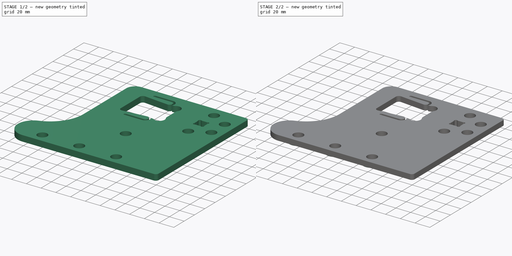
[diagram: build sequence overview — one tinted view per stage of 2, left to right]
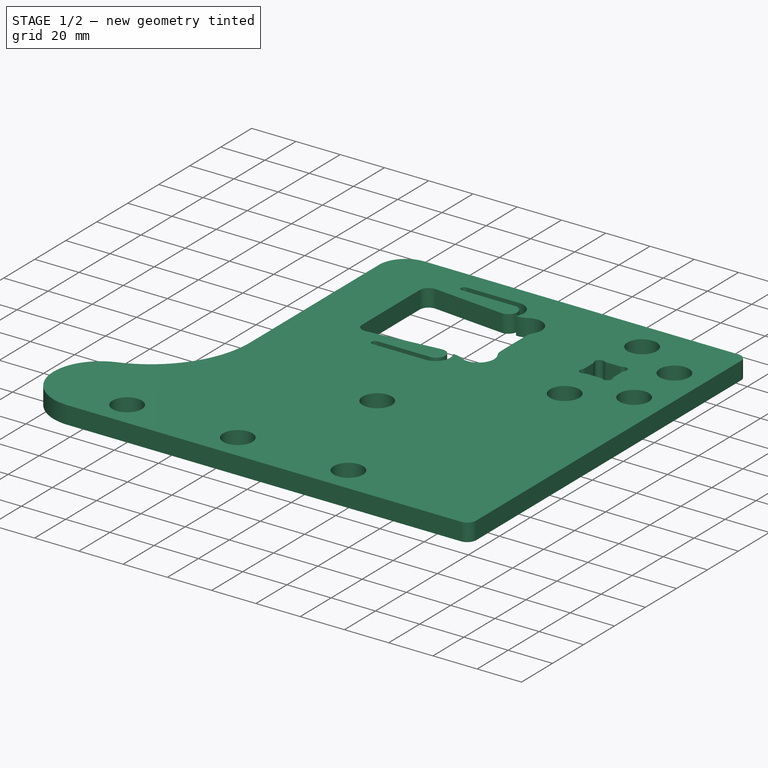
[diagram: stage 1 of 2 — iso view after this stage's code; geometry added in this stage tinted green]
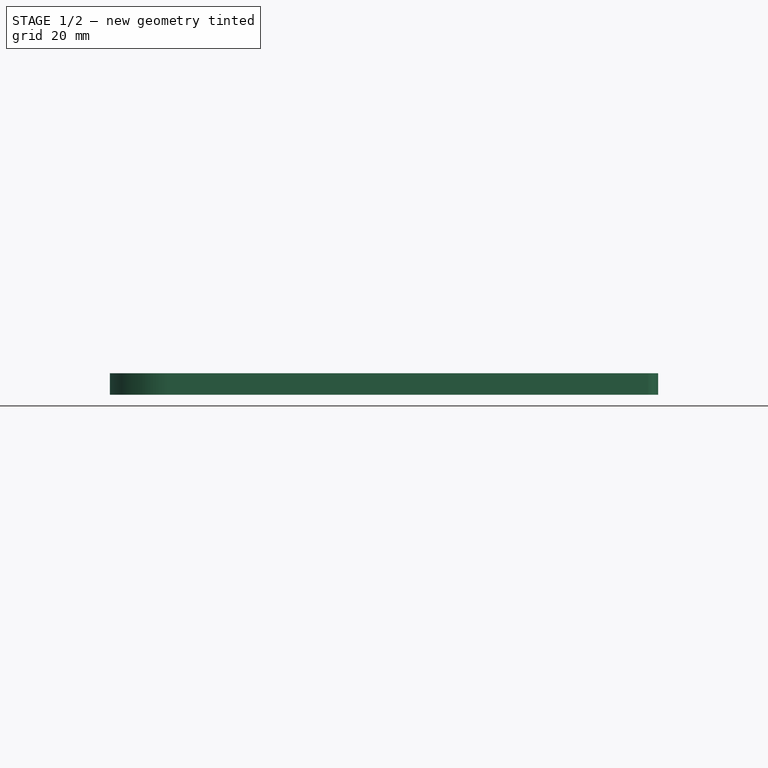
[diagram: stage 1 of 2 — front view after this stage's code; geometry added in this stage tinted green]
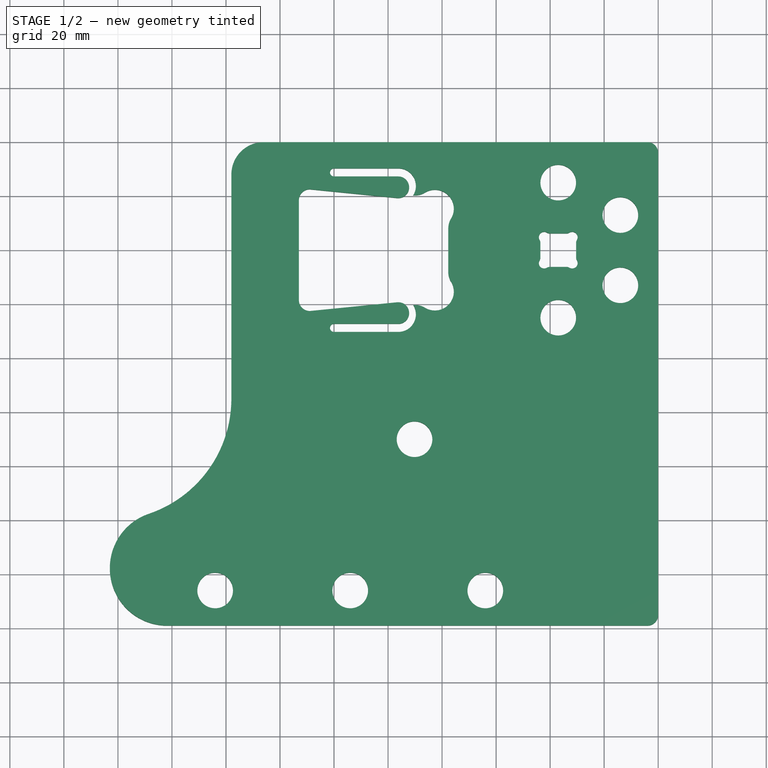
[diagram: stage 1 of 2 — top view after this stage's code; geometry added in this stage tinted green]
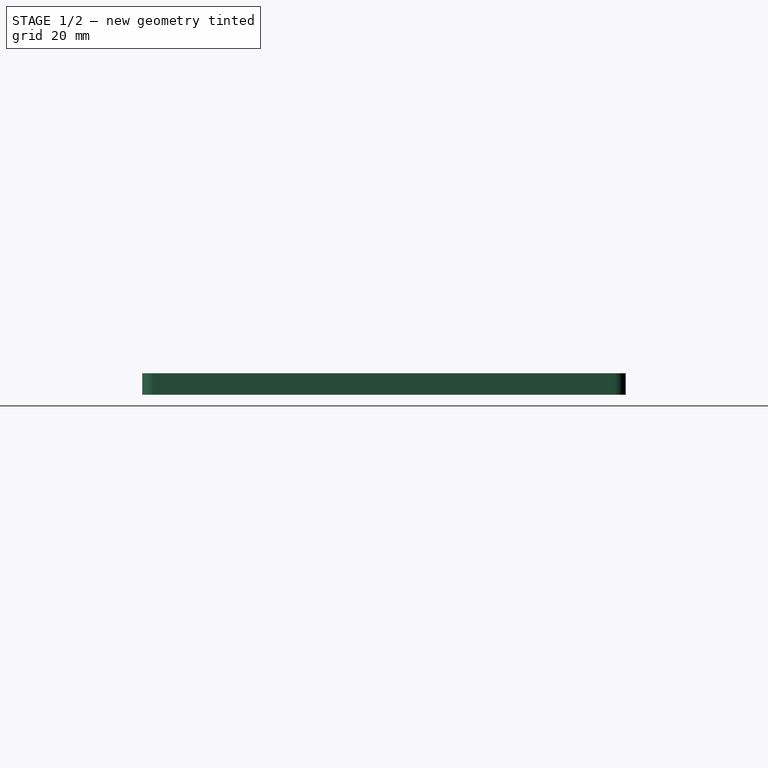
[diagram: stage 1 of 2 — right view after this stage's code; geometry added in this stage tinted green]
FCSTD DOCUMENT  (FreeCAD 0.19R24267 +99 (Git))
Label: V2 Tabbed end plate opposing plate + FEA cutouts right side
License: All rights reserved
LicenseURL: http://en.wikipedia.org/wiki/All_rights_reserved
objects: Sketcher::SketchObject×2, PartDesign::Pad×1, PartDesign::Pocket×1, PartDesign::Body×1
note: 7 computed .brp shape members not serialized (recipe doc carries the construction recipe); baked Part::Feature solids carry a one-line shape summary decoded from their .brp

FEATURE [Sketcher::SketchObject] Sketch
  FullyConstrained = true
  MapMode = 5
  Support = -> [XY_Plane]
  sketch-geometry (84):
    g0: Circle CenterX=-37 CenterY=25 CenterZ=0 NormalX=0 NormalY=0 NormalZ=1 AngleXU=0 Radius=6.6
    g1: Circle CenterX=-37 CenterY=-25 CenterZ=0 NormalX=0 NormalY=0 NormalZ=1 AngleXU=0 Radius=6.6
    g2: LineSegment StartX=-37 StartY=25 StartZ=0 EndX=-37 EndY=-25 EndZ=0
    g3: GeomPoint X=-37 Y=0 Z=0
    g4: LineSegment StartX=-40.1018 StartY=6.2 StartZ=0 EndX=-33.8982 EndY=6.2 EndZ=0
    g5: LineSegment StartX=-30.4 StartY=2.70176 StartZ=0 EndX=-30.4 EndY=-2.70176 EndZ=0
    g6: LineSegment StartX=-33.8982 StartY=-6.2 StartZ=0 EndX=-40.1018 EndY=-6.2 EndZ=0
    g7: LineSegment StartX=-43.6 StartY=-2.70176 StartZ=0 EndX=-43.6 EndY=2.70176 EndZ=0
    g8: Circle CenterX=-14 CenterY=13 CenterZ=0 NormalX=0 NormalY=0 NormalZ=1 AngleXU=0 Radius=6.6
    g9: Circle CenterX=-14 CenterY=-13 CenterZ=0 NormalX=0 NormalY=0 NormalZ=1 AngleXU=0 Radius=6.6
    g10: LineSegment StartX=-14 StartY=13 StartZ=0 EndX=-14 EndY=-13 EndZ=0
    g11: ArcOfCircle CenterX=-42.1858 CenterY=4.78579 CenterZ=0 NormalX=0 NormalY=0 NormalZ=1 AngleXU=0 Radius=2 StartAngle=1.02277 EndAngle=3.68962
    g12: ArcOfCircle CenterX=-31.8142 CenterY=4.78579 CenterZ=0 NormalX=0 NormalY=0 NormalZ=1 AngleXU=0 Radius=2 StartAngle=5.73516 EndAngle=8.40201
    g13: ArcOfCircle CenterX=-31.8142 CenterY=-4.78579 CenterZ=0 NormalX=0 NormalY=0 NormalZ=1 AngleXU=0 Radius=2 StartAngle=4.16436 EndAngle=6.83121
    g14: ArcOfCircle CenterX=-42.1858 CenterY=-4.78579 CenterZ=0 NormalX=0 NormalY=0 NormalZ=1 AngleXU=0 Radius=2 StartAngle=2.59356 EndAngle=5.26042
    g15: LineSegment StartX=-43.6 StartY=2.70176 StartZ=0 EndX=-43.6 EndY=6.2 EndZ=0
    g16: LineSegment StartX=-40.1018 StartY=6.2 StartZ=0 EndX=-43.6 EndY=6.2 EndZ=0
    g17: LineSegment StartX=-33.8982 StartY=6.2 StartZ=0 EndX=-30.4 EndY=6.2 EndZ=0
    g18: LineSegment StartX=-30.4 StartY=2.70176 StartZ=0 EndX=-30.4 EndY=6.2 EndZ=0
    g19: LineSegment StartX=-30.4 StartY=-2.70176 StartZ=0 EndX=-30.4 EndY=-6.2 EndZ=0
    g20: LineSegment StartX=-33.8982 StartY=-6.2 StartZ=0 EndX=-30.4 EndY=-6.2 EndZ=0
    g21: LineSegment StartX=-40.1018 StartY=-6.2 StartZ=0 EndX=-43.6 EndY=-6.2 EndZ=0
    g22: LineSegment StartX=-43.6 StartY=-2.70176 StartZ=0 EndX=-43.6 EndY=-6.2 EndZ=0
    g23: ArcOfCircle CenterX=-40.1018 CenterY=8.2 CenterZ=0 NormalX=0 NormalY=0 NormalZ=1 AngleXU=0 Radius=2 StartAngle=4.16436 EndAngle=4.71239
    g24: ArcOfCircle CenterX=-45.6 CenterY=2.70176 CenterZ=0 NormalX=0 NormalY=0 NormalZ=1 AngleXU=0 Radius=2 StartAngle=1e-16 EndAngle=0.548028
    g25: ArcOfCircle CenterX=-33.8982 CenterY=8.2 CenterZ=0 NormalX=0 NormalY=0 NormalZ=1 AngleXU=0 Radius=2 StartAngle=4.71239 EndAngle=5.26042
    g26: ArcOfCircle CenterX=-28.4 CenterY=2.70176 CenterZ=0 NormalX=0 NormalY=0 NormalZ=1 AngleXU=0 Radius=2 StartAngle=2.59356 EndAngle=3.14159
    g27: ArcOfCircle CenterX=-45.6 CenterY=-2.70176 CenterZ=0 NormalX=0 NormalY=0 NormalZ=1 AngleXU=0 Radius=2 StartAngle=5.73516 EndAngle=6.28319
    g28: ArcOfCircle CenterX=-40.1018 CenterY=-8.2 CenterZ=0 NormalX=0 NormalY=0 NormalZ=1 AngleXU=0 Radius=2 StartAngle=1.5708 EndAngle=2.11882
    g29: ArcOfCircle CenterX=-33.8982 CenterY=-8.2 CenterZ=0 NormalX=0 NormalY=0 NormalZ=1 AngleXU=0 Radius=2 StartAngle=1.02277 EndAngle=1.5708
    g30: ArcOfCircle CenterX=-28.4 CenterY=-2.70176 CenterZ=0 NormalX=0 NormalY=0 NormalZ=1 AngleXU=0 Radius=2 StartAngle=3.14159 EndAngle=3.68962
    g31: LineSegment StartX=-4 StartY=40 StartZ=0 EndX=-146 EndY=40 EndZ=0
    g32: LineSegment StartX=-102.7 StartY=20.3 StartZ=0 EndX=-102.7 EndY=-20.3 EndZ=0
    g33: ArcOfCircle CenterX=-4 CenterY=36 CenterZ=0 NormalX=0 NormalY=0 NormalZ=1 AngleXU=0 Radius=4 StartAngle=0 EndAngle=1.5708
    g34: LineSegment StartX=-96.2 StartY=20.3 StartZ=0 EndX=-96.2 EndY=-20.3 EndZ=0
    g35: LineSegment StartX=-90.7 StartY=20.3 StartZ=0 EndX=-90.7 EndY=-20.3 EndZ=0
    g36: LineSegment StartX=-90.7 StartY=20.3 StartZ=0 EndX=-89.9438 EndY=20.3 EndZ=0
    g37: LineSegment StartX=-90.7 StartY=-20.3 StartZ=0 EndX=-89.9438 EndY=-20.3 EndZ=0
    g38: LineSegment StartX=-77.7 StartY=8.05618 StartZ=0 EndX=-77.7 EndY=-8.05618 EndZ=0
    g39: ArcOfCircle CenterX=-82.6497 CenterY=15.3503 CenterZ=0 NormalX=0 NormalY=0 NormalZ=1 AngleXU=0 Radius=7 StartAngle=5.73516 EndAngle=8.40201
    g40: ArcOfCircle CenterX=-82.6497 CenterY=-15.3503 CenterZ=0 NormalX=0 NormalY=0 NormalZ=1 AngleXU=0 Radius=7 StartAngle=4.16436 EndAngle=6.83121
    g41: ArcOfCircle CenterX=-89.9438 CenterY=-27.3 CenterZ=0 NormalX=0 NormalY=0 NormalZ=1 AngleXU=0 Radius=7 StartAngle=1.02277 EndAngle=1.5708
    g42: ArcOfCircle CenterX=-70.7 CenterY=-8.05618 CenterZ=0 NormalX=0 NormalY=0 NormalZ=1 AngleXU=0 Radius=7 StartAngle=3.14159 EndAngle=3.68962
    g43: ArcOfCircle CenterX=-70.7 CenterY=8.05618 CenterZ=0 NormalX=0 NormalY=0 NormalZ=1 AngleXU=0 Radius=7 StartAngle=2.59356 EndAngle=3.14159
    g44: ArcOfCircle CenterX=-89.9438 CenterY=27.3 CenterZ=0 NormalX=0 NormalY=0 NormalZ=1 AngleXU=0 Radius=7 StartAngle=4.71239 EndAngle=5.26042
    g45: LineSegment StartX=-89.9438 StartY=20.3 StartZ=0 EndX=-77.7 EndY=20.3 EndZ=0
    g46: LineSegment StartX=-77.7 StartY=8.05618 StartZ=0 EndX=-77.7 EndY=20.3 EndZ=0
    g47: LineSegment StartX=-89.9438 StartY=-20.3 StartZ=0 EndX=-77.7 EndY=-20.3 EndZ=0
    g48: LineSegment StartX=-77.7 StartY=-8.05618 StartZ=0 EndX=-77.7 EndY=-20.3 EndZ=0
    g49: Circle CenterX=-164 CenterY=-126 CenterZ=0 NormalX=0 NormalY=0 NormalZ=1 AngleXU=0 Radius=6.6
    g50: Circle CenterX=-114 CenterY=-126 CenterZ=0 NormalX=0 NormalY=0 NormalZ=1 AngleXU=0 Radius=6.6
    g51: Circle CenterX=-64 CenterY=-126 CenterZ=0 NormalX=0 NormalY=0 NormalZ=1 AngleXU=0 Radius=6.6
    g52: LineSegment StartX=-164 StartY=-126 StartZ=0 EndX=-114 EndY=-126 EndZ=0
    g53: LineSegment StartX=-114 StartY=-126 StartZ=0 EndX=-64 EndY=-126 EndZ=0
    g54: LineSegment StartX=-181.75 StartY=-139 StartZ=0 EndX=-4 EndY=-139 EndZ=0
    g55: LineSegment StartX=0 StartY=36 StartZ=0 EndX=0 EndY=-135 EndZ=0
    g56: ArcOfCircle CenterX=-4 CenterY=-135 CenterZ=0 NormalX=0 NormalY=0 NormalZ=1 AngleXU=0 Radius=4 StartAngle=4.71239 EndAngle=6.28319
    g57: ArcOfCircle CenterX=-203 CenterY=-55 CenterZ=0 NormalX=0 NormalY=0 NormalZ=1 AngleXU=0 Radius=45 StartAngle=5.03892 EndAngle=6.28319
    g58: LineSegment StartX=-158 StartY=-55 StartZ=0 EndX=-158 EndY=28 EndZ=0
    g59: Circle CenterX=-90.2 CenterY=-70 CenterZ=0 NormalX=0 NormalY=0 NormalZ=1 AngleXU=0 Radius=6.6
    g60: ArcOfCircle CenterX=-146 CenterY=28 CenterZ=0 NormalX=0 NormalY=0 NormalZ=1 AngleXU=0 Radius=12 StartAngle=1.5708 EndAngle=3.14159
    g61: LineSegment StartX=-90.7 StartY=20.3 StartZ=0 EndX=-158 EndY=20.3 EndZ=0
    g62: LineSegment StartX=-90.7 StartY=-20.3 StartZ=0 EndX=-158 EndY=-20.3 EndZ=0
    g63: LineSegment StartX=-133 StartY=18.5247 StartZ=0 EndX=-133 EndY=-18.5247 EndZ=0
    g64: LineSegment StartX=-128.601 StartY=22.5048 StartZ=0 EndX=-96.5986 EndY=19.3 EndZ=0
    g65: LineSegment StartX=-128.601 StartY=-22.5048 StartZ=0 EndX=-96.5986 EndY=-19.3 EndZ=0
    g66: GeomPoint X=-106.584 Y=20.3 Z=0
    g67: GeomPoint X=-106.584 Y=-20.3 Z=0
    g68: ArcOfCircle CenterX=-129 CenterY=18.5247 CenterZ=0 NormalX=0 NormalY=0 NormalZ=1 AngleXU=0 Radius=4 StartAngle=1.47099 EndAngle=3.14159
    g69: ArcOfCircle CenterX=-129 CenterY=-18.5247 CenterZ=0 NormalX=0 NormalY=0 NormalZ=1 AngleXU=0 Radius=4 StartAngle=3.14159 EndAngle=4.8122
    g70: GeomPoint X=-132.584 Y=20.3 Z=0
    g71: LineSegment StartX=-96.2 StartY=20.3 StartZ=0 EndX=-96.2 EndY=23.2801 EndZ=0
    g72: ArcOfCircle CenterX=-96.2 CenterY=23.2801 CenterZ=0 NormalX=0 NormalY=0 NormalZ=1 AngleXU=0 Radius=4 StartAngle=4.61258 EndAngle=7.85398
    g73: ArcOfCircle CenterX=-96.2 CenterY=-23.2801 CenterZ=0 NormalX=0 NormalY=0 NormalZ=1 AngleXU=0 Radius=4 StartAngle=4.71239 EndAngle=7.95379
    g74: LineSegment StartX=-96.2 StartY=27.2801 StartZ=0 EndX=-120 EndY=27.2801 EndZ=0
    g75: LineSegment StartX=-96.2 StartY=-27.2801 StartZ=0 EndX=-120 EndY=-27.2801 EndZ=0
    g76: LineSegment StartX=-96.2 StartY=30.2801 StartZ=0 EndX=-120 EndY=30.2801 EndZ=0
    g77: LineSegment StartX=-96.2 StartY=-30.2801 StartZ=0 EndX=-120 EndY=-30.2801 EndZ=0
    g78: ArcOfCircle CenterX=-120 CenterY=28.7801 CenterZ=0 NormalX=0 NormalY=0 NormalZ=1 AngleXU=0 Radius=1.5 StartAngle=1.5708 EndAngle=4.71239
    g79: ArcOfCircle CenterX=-120 CenterY=-28.7801 CenterZ=0 NormalX=0 NormalY=0 NormalZ=1 AngleXU=0 Radius=1.5 StartAngle=1.5708 EndAngle=4.71239
    g80: ArcOfCircle CenterX=-96.2 CenterY=-23.7745 CenterZ=0 NormalX=0 NormalY=0 NormalZ=1 AngleXU=0 Radius=6.50556 StartAngle=4.71239 EndAngle=6.84661
    g81: ArcOfCircle CenterX=-96.2 CenterY=23.7745 CenterZ=0 NormalX=0 NormalY=0 NormalZ=1 AngleXU=0 Radius=6.50556 StartAngle=5.71976 EndAngle=7.85398
    g82: ArcOfCircle CenterX=-181.75 CenterY=-117.75 CenterZ=0 NormalX=0 NormalY=0 NormalZ=1 AngleXU=0 Radius=21.2503 StartAngle=1.89733 EndAngle=4.71239
    g83: LineSegment StartX=-203 StartY=-55 StartZ=0 EndX=-203 EndY=-117.75 EndZ=0
  constraints (214):
    c: Symmetric(g0,g1,g-1)
    c: DistanceY(g1,g0) = 50
    c: Coincident(g2,g0)
    c: Coincident(g2,g1)
    c: Equal(g1,g0)
    c: PointOnObject(g3,g2)
    c: PointOnObject(g3,g-1)
    c: Horizontal(g4)
    c: Horizontal(g6)
    c: Vertical(g5)
    c: Vertical(g7)
    c: Coincident(g10,g8)
    c: Coincident(g10,g9)
    c: Equal(g9,g8)
    c: Equal(g8,g0)
    c: DistanceY(g10,g10) = 26
    c: Symmetric(g8,g9,g-1)
    c: Equal(g11,g12)
    c: Equal(g12,g13)
    c: Equal(g13,g14)
    c: PointOnObject(g15,g11)
    c: Coincident(g16,g15)
    c: PointOnObject(g17,g12)
    c: Coincident(g18,g17)
    c: PointOnObject(g19,g13)
    c: Coincident(g20,g19)
    c: PointOnObject(g21,g14)
    c: Coincident(g22,g21)
    c: Equal(g22,g21)
    c: Equal(g21,g20)
    c: Equal(g20,g19)
    c: Equal(g19,g18)
    c: Equal(g18,g17)
    c: Equal(g17,g16)
    c: Equal(g16,g15)
    c: Vertical(g15)
    c: Vertical(g22)
    c: Vertical(g19)
    c: Vertical(g18)
    c: Horizontal(g16)
    c: Tangent(g11,g23) = 1.5708
    c: Tangent(g4,g23) = -1.5708
    c: Tangent(g11,g24) = 1.5708
    c: Tangent(g7,g24) = -1.5708
    c: Tangent(g12,g25) = 1.5708
    c: Tangent(g4,g25) = -1.5708
    c: Tangent(g12,g26) = 1.5708
    c: Tangent(g5,g26) = -1.5708
    c: Tangent(g14,g27) = 1.5708
    c: Tangent(g7,g27) = -1.5708
    c: Tangent(g14,g28) = 1.5708
    c: Tangent(g6,g28) = -1.5708
    c: Tangent(g13,g29) = 1.5708
    c: Tangent(g6,g29) = -1.5708
    c: Tangent(g13,g30) = 1.5708
    c: Tangent(g5,g30) = -1.5708
    c: Coincident(g5,g19)
    c: Coincident(g6,g20)
    c: Coincident(g6,g21)
    c: Coincident(g7,g22)
    c: Coincident(g7,g15)
    c: Coincident(g18,g5)
    c: Coincident(g4,g16)
    c: Coincident(g4,g17)
    c: Horizontal(g21)
    c: Horizontal(g17)
    c: Horizontal(g20)
    c: Equal(g23,g24)
    c: Equal(g24,g11)
    c: Equal(g27,g28)
    c: Equal(g12,g25)
    c: Equal(g13,g30)
    c: DistanceX(g21,g19) = 13.2
    c: DistanceY(g19,g17) = 12.4
    c: Radius(g12) = 2
    c: Symmetric(g21,g17,g3)
    c: DistanceX(g8,g-1) = 14
    c: Horizontal(g31)
    c: Vertical(g32)
    c: Tangent(g31,g33) = -1.5708
    c: Radius(g33) = 4
    c: DistanceX(g32,g34) = 6.5
    c: Symmetric(g34,g34,g-1)
    c: Symmetric(g35,g35,g-1)
    c: DistanceX(g32,g35) = 12
    c: Coincident(g36,g35)
    c: Horizontal(g36)
    c: Coincident(g37,g35)
    c: Horizontal(g37)
    c: Vertical(g38)
    c: Tangent(g40,g41) = 1.5708
    c: Tangent(g37,g41) = 1.5708
    c: Tangent(g40,g42) = 1.5708
    c: Tangent(g38,g42) = -1.5708
    c: Tangent(g39,g43) = 1.5708
    c: Tangent(g38,g43) = -1.5708
    c: Tangent(g39,g44) = 1.5708
    c: Tangent(g36,g44) = -1.5708
    c: Coincident(g45,g36)
    c: PointOnObject(g45,g39)
    c: Coincident(g46,g38)
    c: Coincident(g46,g45)
    c: Tangent(g46,g43)
    c: Coincident(g47,g37)
    c: PointOnObject(g47,g40)
    c: Tangent(g47,g41)
    c: Coincident(g48,g38)
    c: Coincident(g48,g47)
    c: Vertical(g48)
    c: Equal(g44,g43)
    c: Equal(g43,g39)
    c: Horizontal(g45)
    c: Equal(g41,g40)
    c: Equal(g40,g42)
    c: Radius(g39) = 7
    c: DistanceX(g32,g38) = 25
    c: Equal(g48,g47)
    c: Equal(g47,g46)
    c: Equal(g46,g45)
    c: DistanceX(g1,g9) = 23
    c: DistanceX(g38,g1) = 40.7
    c: Coincident(g52,g49)
    c: Coincident(g52,g50)
    c: Horizontal(g52)
    c: Coincident(g53,g50)
    c: Coincident(g53,g51)
    c: Horizontal(g53)
    c: Equal(g49,g50)
    c: Equal(g50,g51)
    c: DistanceY(g49,g1) = 101
    c: Equal(g53,g52)
    c: DistanceX(g49,g51) = 100
    c: Horizontal(g54)
    c: Vertical(g55)
    c: Tangent(g55,g56) = 1.5708
    c: Tangent(g54,g56) = -1.5708
    c: Equal(g33,g56)
    c: DistanceY(g54,g51) = 13
    c: PointOnObject(g-1,g55)
    c: Tangent(g55,g33) = 1.5708
    c: DistanceX(g51,g1) = 27
    c: DistanceY(g57,g1) = 30
    c: DistanceX(g57,g1) = 166
    c: Vertical(g58)
    c: Radius(g57) = 45
    c: Tangent(g57,g58) = -1.5708
    c: Equal(g59,g51)
    c: DistanceY(g59,g-1) = 70
    c: Tangent(g31,g60) = -1.5708
    c: Tangent(g58,g60) = 1.5708
    c: Coincident(g61,g36)
    c: Horizontal(g61)
    c: Coincident(g62,g37)
    c: Horizontal(g62)
    c: PointOnObject(g61,g58)
    c: PointOnObject(g62,g58)
    c: PointOnObject(g34,g61)
    c: PointOnObject(g32,g61)
    c: PointOnObject(g32,g62)
    c: DistanceY(g62,g61) = 40.6
    c: Vertical(g63)
    c: PointOnObject(g66,g61)
    c: PointOnObject(g66,g64)
    c: PointOnObject(g67,g65)
    c: Symmetric(g66,g67,g-1)
    c: Tangent(g64,g68) = 1.5708
    c: Tangent(g63,g68) = -1.5708
    c: Tangent(g65,g69) = -1.5708
    c: Tangent(g63,g69) = -1.5708
    c: Equal(g68,g69)
    c: PointOnObject(g70,g61)
    c: PointOnObject(g70,g68)
    c: DistanceX(g70,g66) = 26
    c: DistanceX(g58,g63) = 25
    c: Radius(g68) = 4
    c: Radius(g60) = 12
    c: DistanceY(g-1,g31) = 40
    c: Coincident(g71,g34)
    c: Vertical(g71)
    c: Coincident(g72,g71)
    c: Symmetric(g71,g73,g-1)
    c: Radius(g72) = 4
    c: Horizontal(g74)
    c: Horizontal(g75)
    c: Tangent(g73,g75) = 1.5708
    c: Tangent(g65,g73) = 1.5708
    c: Tangent(g64,g72) = -1.5708
    c: DistanceY(g65,g64) = 38.6
    c: Tangent(g72,g74) = -1.5708
    c: Horizontal(g76)
    c: Horizontal(g77)
    c: Tangent(g79,g75) = -1.5708
    c: Tangent(g79,g77) = 1.5708
    c: Tangent(g78,g76) = -1.5708
    c: Tangent(g78,g74) = 1.5708
    c: Coincident(g80,g35)
    c: Tangent(g80,g77) = 1.5708
    c: Tangent(g81,g76) = -1.5708
    c: Symmetric(g79,g78,g-1)
    c: DistanceX(g58,g78) = 38
    c: Equal(g78,g79)
    c: Radius(g78) = 1.5
    c: Equal(g81,g80)
    c: Coincident(g36,g81)
    c: Equal(g74,g76)
    c: DistanceX(g59,g38) = 12.5
    c: Tangent(g82,g54) = -1.5708
    c: Tangent(g57,g82) = 1.5708
    c: Diameter(g51) = 13.2
    c: Equal(g51,g1)
    c: Coincident(g83,g57)
    c: PointOnObject(g83,g82)
    c: Vertical(g83)
    c: Tangent(g83,g82)
FEATURE [PartDesign::Pad] Pad  label="Plate thickness"
  Direction = (1,1,1)
  Length = 8
  Length2 = 100
  Profile = -> Sketch
  Type = 0
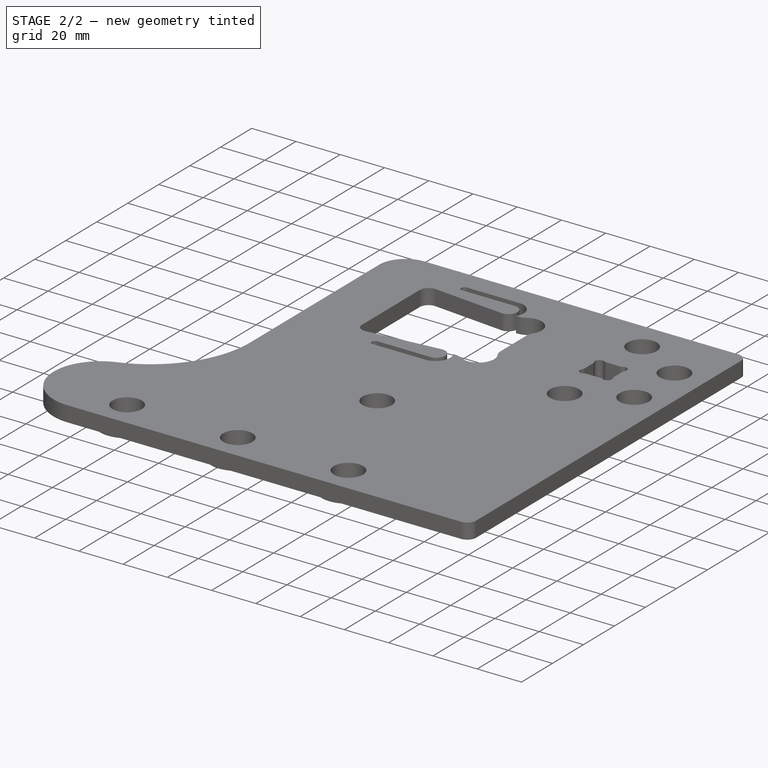
[diagram: stage 2 of 2 — iso view after this stage's code; geometry added in this stage tinted green]
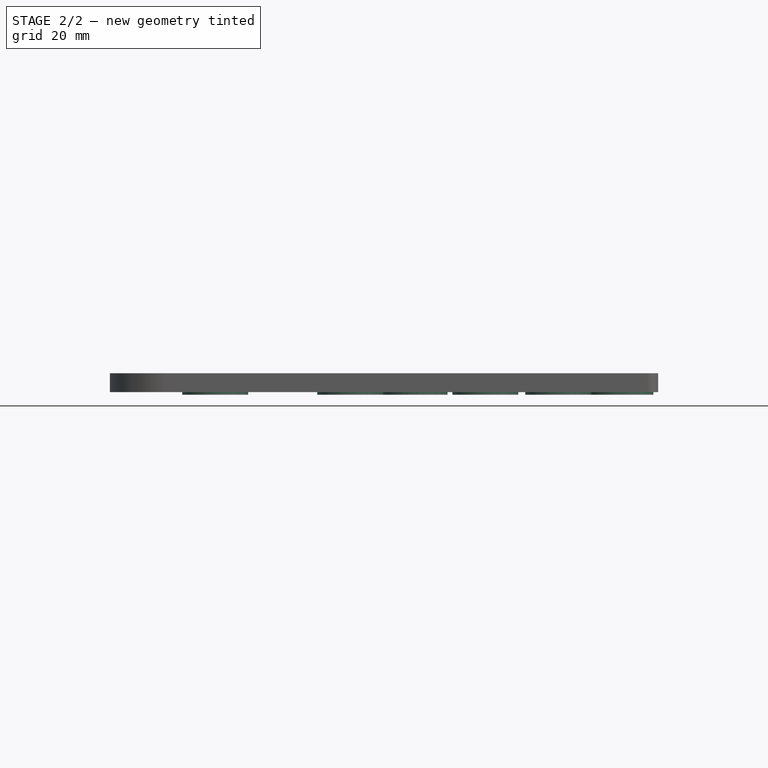
[diagram: stage 2 of 2 — front view after this stage's code; geometry added in this stage tinted green]
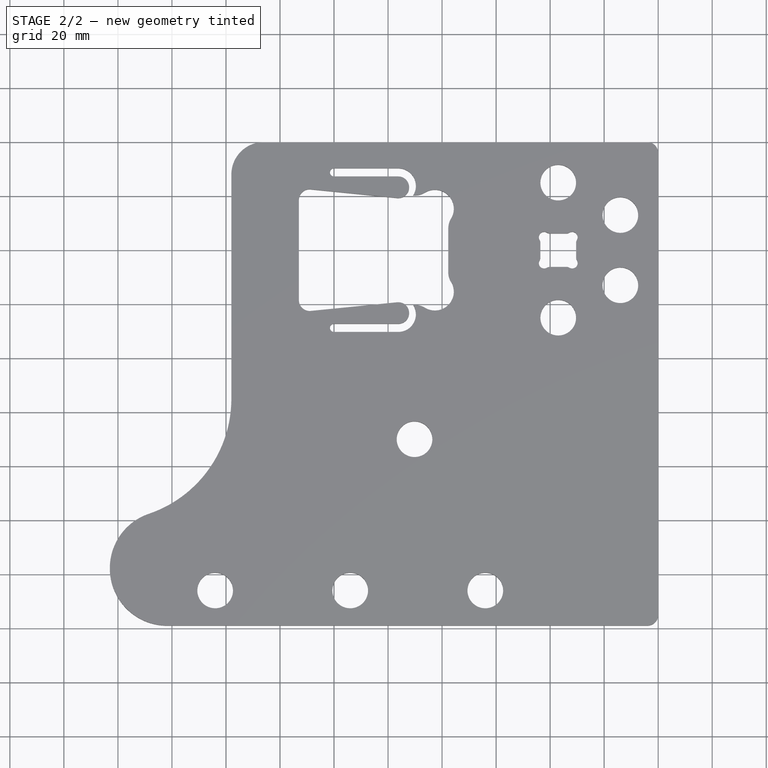
[diagram: stage 2 of 2 — top view after this stage's code; geometry added in this stage tinted green]
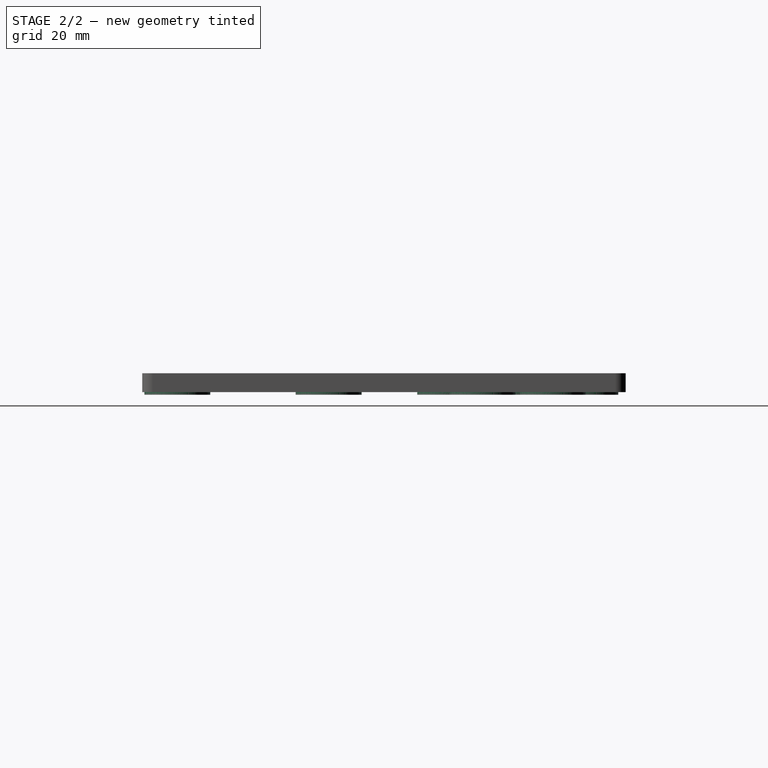
[diagram: stage 2 of 2 — right view after this stage's code; geometry added in this stage tinted green]
FEATURE [Sketcher::SketchObject] Sketch001  label="No clamping region"
  ExternalGeometry = -> [Pad]
  FullyConstrained = false
  MapMode = 5
  Support = -> [XY_Plane]
  sketch-geometry (17):
    g0: LineSegment StartX=5.51725 StartY=44.0948 StartZ=0 EndX=5.51725 EndY=-142.526 EndZ=0
    g1: LineSegment StartX=5.51725 StartY=-142.526 StartZ=0 EndX=-211.65 EndY=-142.526 EndZ=0
    g2: LineSegment StartX=-211.65 StartY=-142.526 StartZ=0 EndX=-211.65 EndY=-44.4651 EndZ=0
    g3: LineSegment StartX=-211.65 StartY=-44.4651 StartZ=0 EndX=-211.65 EndY=44.0948 EndZ=0
    g4: LineSegment StartX=-211.65 StartY=44.0948 StartZ=0 EndX=5.51725 EndY=44.0948 EndZ=0
    g5: Circle CenterX=-37 CenterY=-25 CenterZ=0 NormalX=0 NormalY=0 NormalZ=1 AngleXU=0 Radius=12.1995
    g6: Circle CenterX=-14 CenterY=13 CenterZ=0 NormalX=0 NormalY=0 NormalZ=1 AngleXU=0 Radius=12.1995
    g7: Circle CenterX=-14 CenterY=-13 CenterZ=0 NormalX=0 NormalY=0 NormalZ=1 AngleXU=0 Radius=12.1995
    g8: Circle CenterX=-37 CenterY=25 CenterZ=0 NormalX=0 NormalY=0 NormalZ=1 AngleXU=0 Radius=12.1995
    g9: Circle CenterX=-114 CenterY=-126 CenterZ=0 NormalX=0 NormalY=0 NormalZ=1 AngleXU=0 Radius=12.1995
    g10: Circle CenterX=-90.2 CenterY=-70 CenterZ=0 NormalX=0 NormalY=0 NormalZ=1 AngleXU=0 Radius=12.1995
    g11: Circle CenterX=-64 CenterY=-126 CenterZ=0 NormalX=0 NormalY=0 NormalZ=1 AngleXU=0 Radius=12.1995
    g12: Circle CenterX=-164 CenterY=-126 CenterZ=0 NormalX=0 NormalY=0 NormalZ=1 AngleXU=0 Radius=12.1995
    g13: LineSegment StartX=-43.6 StartY=2.70176 StartZ=0 EndX=-30.4 EndY=-2.70176 EndZ=0
    g14: LineSegment StartX=-43.6 StartY=-2.70176 StartZ=0 EndX=-30.4 EndY=2.70176 EndZ=0
    g15: GeomPoint X=-37 Y=-1e-16 Z=0
    g16: Circle CenterX=-37 CenterY=0 CenterZ=0 NormalX=0 NormalY=0 NormalZ=1 AngleXU=0 Radius=12.1995
  constraints (32):
    c: Coincident(g0,g1)
    c: Horizontal(g1)
    c: Vertical(g0)
    c: Vertical(g2)
    c: Coincident(g3,g2)
    c: Vertical(g3)
    c: Coincident(g4,g3)
    c: Horizontal(g4)
    c: Coincident(g5,g-3)
    c: Coincident(g6,g-4)
    c: Coincident(g7,g-5)
    c: Coincident(g8,g-6)
    c: Coincident(g9,g-7)
    c: Coincident(g10,g-8)
    c: Coincident(g11,g-9)
    c: Coincident(g12,g-10)
    c: Equal(g5,g9)
    c: Equal(g9,g10)
    c: Equal(g10,g11)
    c: Equal(g11,g12)
    c: Equal(g12,g8)
    c: Equal(g8,g7)
    c: Equal(g7,g6)
    c: Coincident(g1,g2)
    c: Coincident(g0,g4)
    c: Coincident(g13,g-11)
    c: Coincident(g13,g-12)
    c: Coincident(g14,g-11)
    c: Coincident(g14,g-12)
    c: PointOnObject(g15,g13)
    c: PointOnObject(g15,g14)
    c: Equal(g16,g12)
FEATURE [PartDesign::Pocket] Pocket  label="Gap to simulate no clamping region"
  BaseFeature = -> Pad
  Length = 1
  Length2 = 100
  Profile = -> Sketch001
  Reversed = true
  Type = 0
FEATURE [PartDesign::Body] Body
  Group = -> [Sketch,Pad,Sketch001,Pocket]
  Origin = -> Origin
  Tip = -> Pocket
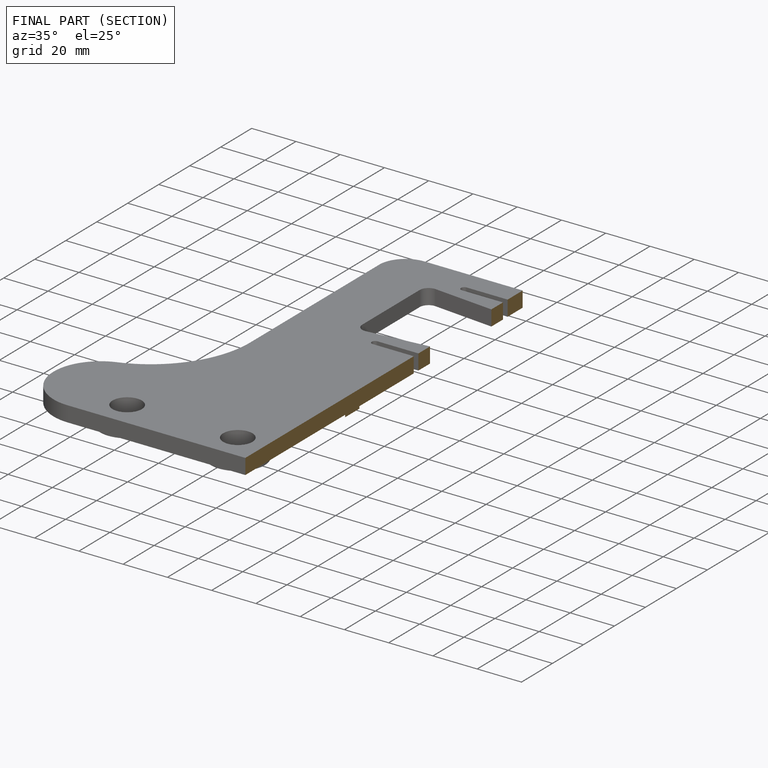
[diagram: finished part — half-section view (interior)]
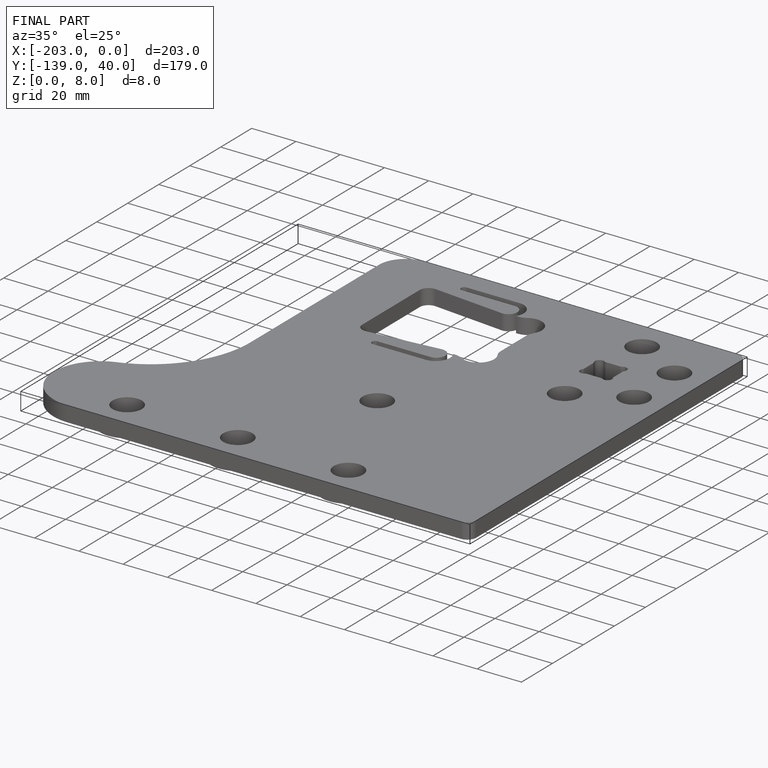
[diagram: finished part — iso view with bounding-box wireframe]
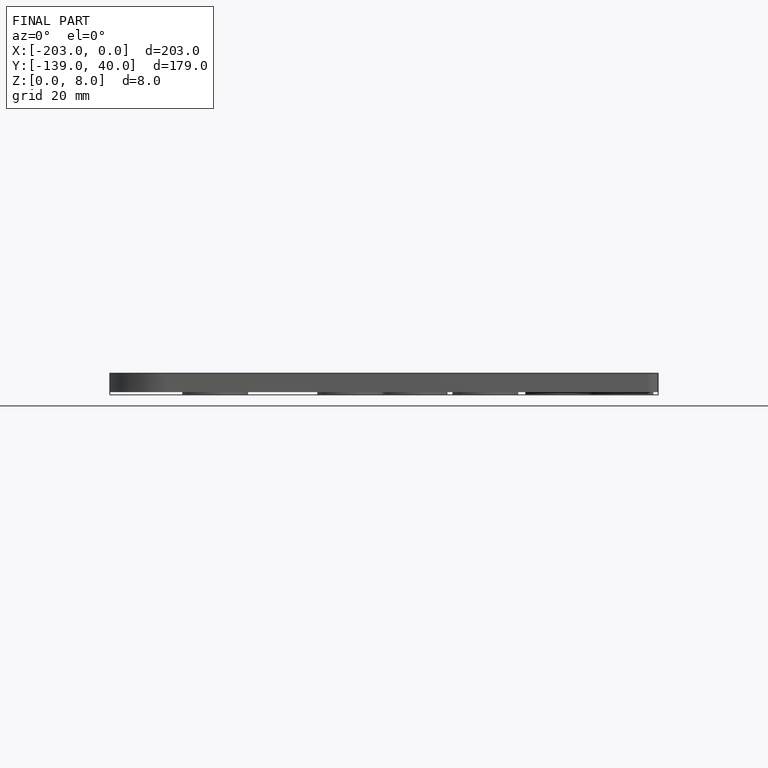
[diagram: finished part — front view with bounding-box wireframe]
